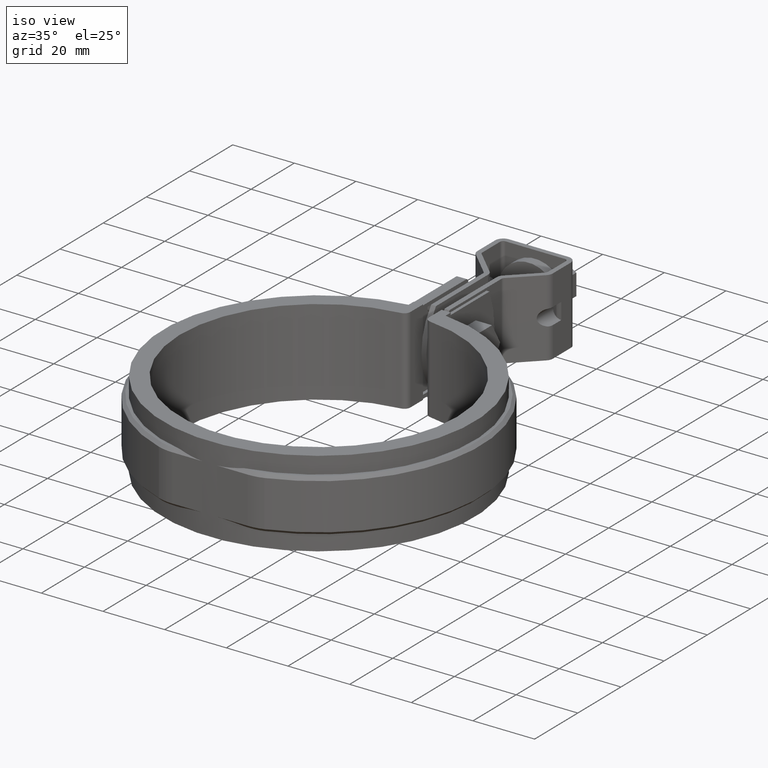
[diagram: clean part render]
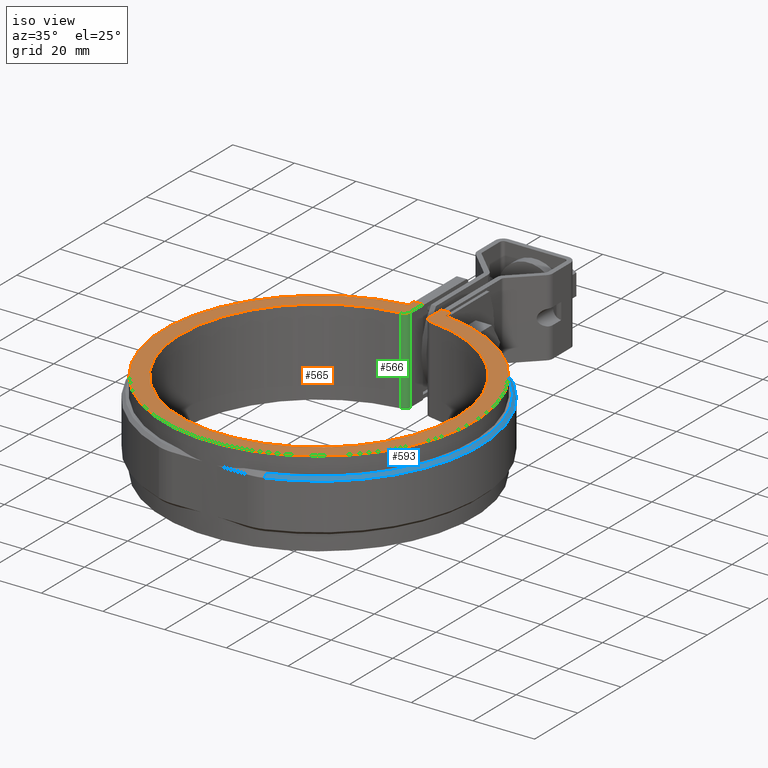
[diagram: same view with three faces highlighted in distinct colors, each labeled with its STEP entity id]
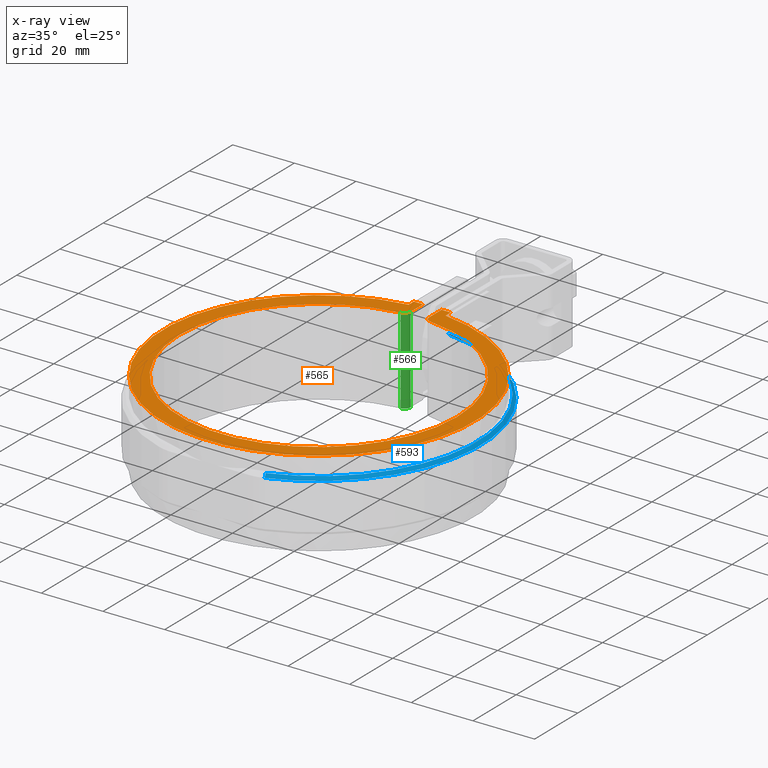
[diagram: x-ray of the same camera — body ghosted, the three highlighted faces saturated]
A machine part, iso view with three faces highlighted in distinct colors.
The next image is the same camera in x-ray (body ghosted, the three faces saturated) — at least one of them is partly hidden behind the body in this view.
Their STEP definitions:

[orange] entity #565 — the highlighted planar face has unit normal (0, 0, 1).
#565 = ADVANCED_FACE( '', ( #1041 ), #1042, .T. );
#1041 = FACE_OUTER_BOUND( '', #2374, .T. );
#1042 = PLANE( '', #2375 );
#2374 = EDGE_LOOP( '', ( #5106, #5107, #5108, #5109, #5110, #5111, #5112, #5113, #5114, #5115 ) );
#2375 = AXIS2_PLACEMENT_3D( '', #5116, #5117, #5118 );
#5106 = ORIENTED_EDGE( '', *, *, #7695, .T. );
#5107 = ORIENTED_EDGE( '', *, *, #7696, .F. );
#5108 = ORIENTED_EDGE( '', *, *, #7673, .F. );
#5109 = ORIENTED_EDGE( '', *, *, #7697, .F. );
#5110 = ORIENTED_EDGE( '', *, *, #7698, .F. );
#5111 = ORIENTED_EDGE( '', *, *, #7699, .F. );
#5112 = ORIENTED_EDGE( '', *, *, #7640, .T. );
#5113 = ORIENTED_EDGE( '', *, *, #7604, .T. );
#5114 = ORIENTED_EDGE( '', *, *, #7652, .T. );
#5115 = ORIENTED_EDGE( '', *, *, #7700, .T. );
#5116 = CARTESIAN_POINT( '', ( -5.24039279849732, 48.0518761955218, 14.0000000000000 ) );
#5117 = DIRECTION( '', ( 0.000000000000000, 0.000000000000000, 1.00000000000000 ) );
#5118 = DIRECTION( '', ( -0.141414143857009, 0.989950523974400, 0.000000000000000 ) );
#7604 = EDGE_CURVE( '', #8821, #8819, #8822, .T. );
#7640 = EDGE_CURVE( '', #8880, #8821, #8881, .T. );
#7652 = EDGE_CURVE( '', #8819, #8899, #8901, .T. );
#7673 = EDGE_CURVE( '', #8933, #8935, #8936, .T. );
#7695 = EDGE_CURVE( '', #8970, #8971, #8972, .T. );
#7696 = EDGE_CURVE( '', #8935, #8971, #8973, .T. );
#7697 = EDGE_CURVE( '', #8974, #8933, #8975, .T. );
#7698 = EDGE_CURVE( '', #8976, #8974, #8977, .T. );
#7699 = EDGE_CURVE( '', #8880, #8976, #8978, .T. );
#7700 = EDGE_CURVE( '', #8899, #8970, #8979, .T. );
#8819 = VERTEX_POINT( '', #12534 );
#8821 = VERTEX_POINT( '', #12537 );
#8822 = CIRCLE( '', #12538, 2.00000000000000 );
#8880 = VERTEX_POINT( '', #12696 );
#8881 = LINE( '', #12697, #12698 );
#8899 = VERTEX_POINT( '', #12723 );
#8901 = CIRCLE( '', #12726, 45.0000000000000 );
#8933 = VERTEX_POINT( '', #12779 );
#8935 = VERTEX_POINT( '', #12782 );
#8936 = LINE( '', #12783, #12784 );
#8970 = VERTEX_POINT( '', #12833 );
#8971 = VERTEX_POINT( '', #12834 );
#8972 = LINE( '', #12835, #12836 );
#8973 = LINE( '', #12837, #12838 );
#8974 = VERTEX_POINT( '', #12839 );
#8975 = CIRCLE( '', #12840, 50.5000000000000 );
#8976 = VERTEX_POINT( '', #12841 );
#8977 = LINE( '', #12842, #12843 );
#8978 = LINE( '', #12844, #12845 );
#8979 = CIRCLE( '', #12846, 2.00000000000000 );
#12534 = CARTESIAN_POINT( '', ( 4.78723404255318, 44.7446353233750, 14.0000000000000 ) );
#12537 = CARTESIAN_POINT( '', ( 3.00000000000000, 46.7332857821917, 14.0000000000000 ) );
#12538 = AXIS2_PLACEMENT_3D( '', #14724, #14725, #14726 );
#12696 = CARTESIAN_POINT( '', ( 2.99999999999996, 52.5500000000000, 14.0000000000000 ) );
#12697 = CARTESIAN_POINT( '', ( 3.00000000000000, 52.5500000000000, 14.0000000000000 ) );
#12698 = VECTOR( '', #14752, 1000.00000000000 );
#12723 = CARTESIAN_POINT( '', ( -4.78723404255264, 44.7446353233751, 14.0000000000000 ) );
#12726 = AXIS2_PLACEMENT_3D( '', #14770, #14771, #14772 );
#12779 = CARTESIAN_POINT( '', ( -5.99999999999999, 50.1422975141746, 14.0000000000000 ) );
#12782 = CARTESIAN_POINT( '', ( -6.00000000000000, 52.5500000000000, 14.0000000000000 ) );
#12783 = CARTESIAN_POINT( '', ( -6.00000000000000, 50.1422975141746, 14.0000000000000 ) );
#12784 = VECTOR( '', #14795, 1000.00000000000 );
#12833 = CARTESIAN_POINT( '', ( -2.99999999999934, 46.7332857821918, 14.0000000000000 ) );
#12834 = CARTESIAN_POINT( '', ( -2.99999999999934, 52.5500000000000, 14.0000000000000 ) );
#12835 = CARTESIAN_POINT( '', ( -2.99999999999934, 46.7332857821917, 14.0000000000000 ) );
#12836 = VECTOR( '', #14829, 1000.00000000000 );
#12837 = CARTESIAN_POINT( '', ( -5.99999999999999, 52.5500000000000, 14.0000000000000 ) );
#12838 = VECTOR( '', #14830, 1000.00000000000 );
#12839 = CARTESIAN_POINT( '', ( 6.00000000000000, 50.1422975141746, 14.0000000000000 ) );
#12840 = AXIS2_PLACEMENT_3D( '', #14831, #14832, #14833 );
#12841 = CARTESIAN_POINT( '', ( 5.99999999999998, 52.5500000000000, 14.0000000000000 ) );
#12842 = CARTESIAN_POINT( '', ( 6.00000000000000, 52.5500000000000, 14.0000000000000 ) );
#12843 = VECTOR( '', #14834, 1000.00000000000 );
#12844 = CARTESIAN_POINT( '', ( 4.99999999999999, 52.5500000000000, 14.0000000000000 ) );
#12845 = VECTOR( '', #14835, 1000.00000000000 );
#12846 = AXIS2_PLACEMENT_3D( '', #14836, #14837, #14838 );
#14724 = CARTESIAN_POINT( '', ( 5.00000000000000, 46.7332857821917, 14.0000000000000 ) );
#14725 = DIRECTION( '', ( 0.000000000000000, 0.000000000000000, 1.00000000000000 ) );
#14726 = DIRECTION( '', ( -1.00000000000000, -2.48412401759879E-015, 0.000000000000000 ) );
#14752 = DIRECTION( '', ( 2.77555756156289E-017, -1.00000000000000, 0.000000000000000 ) );
#14770 = CARTESIAN_POINT( '', ( 3.46944695195361E-015, 2.77555756156289E-014, 14.0000000000000 ) );
#14771 = DIRECTION( '', ( 0.000000000000000, 0.000000000000000, -1.00000000000000 ) );
#14772 = DIRECTION( '', ( 1.00000000000000, -2.77555756156289E-017, 0.000000000000000 ) );
#14795 = DIRECTION( '', ( 5.55111512312578E-017, 1.00000000000000, 0.000000000000000 ) );
#14829 = DIRECTION( '', ( -2.77555756156289E-017, 1.00000000000000, 0.000000000000000 ) );
#14830 = DIRECTION( '', ( 1.00000000000000, 0.000000000000000, 0.000000000000000 ) );
#14831 = CARTESIAN_POINT( '', ( 0.000000000000000, 6.93889390390723E-015, 14.0000000000000 ) );
#14832 = DIRECTION( '', ( 0.000000000000000, 0.000000000000000, -1.00000000000000 ) );
#14833 = DIRECTION( '', ( 1.00000000000000, -2.77555756156289E-017, 0.000000000000000 ) );
#14834 = DIRECTION( '', ( -5.55111512312578E-017, -1.00000000000000, 0.000000000000000 ) );
#14835 = DIRECTION( '', ( 1.00000000000000, 0.000000000000000, 0.000000000000000 ) );
#14836 = CARTESIAN_POINT( '', ( -4.99999999999934, 46.7332857821918, 14.0000000000000 ) );
#14837 = DIRECTION( '', ( 0.000000000000000, 0.000000000000000, 1.00000000000000 ) );
#14838 = DIRECTION( '', ( 1.00000000000000, 2.53963516883005E-015, 0.000000000000000 ) );

[blue] entity #593 — the highlighted conical surface has half-angle 45 deg.
#593 = ADVANCED_FACE( '', ( #1099 ), #1100, .T. );
#1099 = FACE_OUTER_BOUND( '', #2436, .T. );
#1100 = CONICAL_SURFACE( '', #2437, 52.5000000000000, 0.785398163397447 );
#2436 = EDGE_LOOP( '', ( #5356, #5357, #5358, #5359 ) );
#2437 = AXIS2_PLACEMENT_3D( '', #5360, #5361, #5362 );
#5356 = ORIENTED_EDGE( '', *, *, #7718, .F. );
#5357 = ORIENTED_EDGE( '', *, *, #7753, .F. );
#5358 = ORIENTED_EDGE( '', *, *, #7750, .F. );
#5359 = ORIENTED_EDGE( '', *, *, #7754, .F. );
#5360 = CARTESIAN_POINT( '', ( -8.67361737988404E-016, -6.93889390390723E-015, 7.50000000000000 ) );
#5361 = DIRECTION( '', ( 0.000000000000000, 0.000000000000000, -1.00000000000000 ) );
#5362 = DIRECTION( '', ( -1.00000000000000, 0.000000000000000, 0.000000000000000 ) );
#7718 = EDGE_CURVE( '', #9003, #9005, #9006, .T. );
#7750 = EDGE_CURVE( '', #9049, #9050, #9051, .T. );
#7753 = EDGE_CURVE( '', #9050, #9003, #9054, .T. );
#7754 = EDGE_CURVE( '', #9005, #9049, #9055, .F. );
#9003 = VERTEX_POINT( '', #12880 );
#9005 = VERTEX_POINT( '', #12883 );
#9006 = B_SPLINE_CURVE_WITH_KNOTS( '', 3, ( #12884, #12885, #12886, #12887 ), .UNSPECIFIED., .F., .F., ( 4, 4 ), ( 0.000000000000000, 0.00141897658011585 ), .UNSPECIFIED. );
#9049 = VERTEX_POINT( '', #12955 );
#9050 = VERTEX_POINT( '', #12956 );
#9051 = LINE( '', #12957, #12958 );
#9054 = CIRCLE( '', #12961, 51.5000000000000 );
#9055 = CIRCLE( '', #12962, 52.5000000000000 );
#12880 = CARTESIAN_POINT( '', ( 6.00000000000000, 51.1492912951881, 8.50000000000000 ) );
#12883 = CARTESIAN_POINT( '', ( 6.00000000000000, 52.1560159521411, 7.50000000000000 ) );
#12884 = CARTESIAN_POINT( '', ( 6.00000000000000, 51.1492912951881, 8.50000000000000 ) );
#12885 = CARTESIAN_POINT( '', ( 6.00000000000000, 51.4848880168664, 8.16668865097401 ) );
#12886 = CARTESIAN_POINT( '', ( 6.00000000000000, 51.8204624852313, 7.83335489472275 ) );
#12887 = CARTESIAN_POINT( '', ( 6.00000000000000, 52.1560159521411, 7.50000000000000 ) );
#12955 = CARTESIAN_POINT( '', ( 17.1610764231152, -49.6160000000000, 7.50000000000000 ) );
#12956 = CARTESIAN_POINT( '', ( 16.8341987769606, -48.6709333333333, 8.50000000000000 ) );
#12957 = CARTESIAN_POINT( '', ( 17.1610764231152, -49.6160000000000, 7.50000000000000 ) );
#12958 = VECTOR( '', #14914, 1000.00000000000 );
#12961 = AXIS2_PLACEMENT_3D( '', #14921, #14922, #14923 );
#12962 = AXIS2_PLACEMENT_3D( '', #14924, #14925, #14926 );
#14914 = DIRECTION( '', ( -0.231137400214197, 0.668263048673365, 0.707106781186549 ) );
#14921 = CARTESIAN_POINT( '', ( -8.67361737988404E-016, -6.93889390390723E-015, 8.50000000000000 ) );
#14922 = DIRECTION( '', ( 0.000000000000000, 0.000000000000000, 1.00000000000000 ) );
#14923 = DIRECTION( '', ( 1.00000000000000, 0.000000000000000, 0.000000000000000 ) );
#14924 = CARTESIAN_POINT( '', ( -8.67361737988404E-016, -6.93889390390723E-015, 7.50000000000000 ) );
#14925 = DIRECTION( '', ( 0.000000000000000, 0.000000000000000, 1.00000000000000 ) );
#14926 = DIRECTION( '', ( 1.00000000000000, 0.000000000000000, 0.000000000000000 ) );

[green] entity #566 — the highlighted cylindrical surface (edge-blend (fillet) strip) has radius 2 mm, axis along (0, 0, 1).
#566 = ADVANCED_FACE( '', ( #1043 ), #1044, .T. );
#1043 = FACE_OUTER_BOUND( '', #2376, .T. );
#1044 = CYLINDRICAL_SURFACE( '', #2377, 2.00000000000000 );
#2376 = EDGE_LOOP( '', ( #5119, #5120, #5121, #5122 ) );
#2377 = AXIS2_PLACEMENT_3D( '', #5123, #5124, #5125 );
#5119 = ORIENTED_EDGE( '', *, *, #7659, .T. );
#5120 = ORIENTED_EDGE( '', *, *, #7701, .F. );
#5121 = ORIENTED_EDGE( '', *, *, #7700, .F. );
#5122 = ORIENTED_EDGE( '', *, *, #7651, .T. );
#5123 = CARTESIAN_POINT( '', ( -4.99999999999934, 46.7332857821918, 14.0000000000000 ) );
#5124 = DIRECTION( '', ( 0.000000000000000, 0.000000000000000, 1.00000000000000 ) );
#5125 = DIRECTION( '', ( 0.106382978723404, 0.994325229408334, 0.000000000000000 ) );
#7651 = EDGE_CURVE( '', #8899, #8897, #8900, .T. );
#7659 = EDGE_CURVE( '', #8897, #8912, #8914, .T. );
#7700 = EDGE_CURVE( '', #8899, #8970, #8979, .T. );
#7701 = EDGE_CURVE( '', #8970, #8912, #8980, .T. );
#8897 = VERTEX_POINT( '', #12721 );
#8899 = VERTEX_POINT( '', #12723 );
#8900 = LINE( '', #12724, #12725 );
#8912 = VERTEX_POINT( '', #12741 );
#8914 = CIRCLE( '', #12744, 2.00000000000000 );
#8970 = VERTEX_POINT( '', #12833 );
#8979 = CIRCLE( '', #12846, 2.00000000000000 );
#8980 = LINE( '', #12847, #12848 );
#12721 = CARTESIAN_POINT( '', ( -4.78723404255264, 44.7446353233751, -14.0000000000000 ) );
#12723 = CARTESIAN_POINT( '', ( -4.78723404255264, 44.7446353233751, 14.0000000000000 ) );
#12724 = CARTESIAN_POINT( '', ( -4.78723404255264, 44.7446353233751, 14.0000000000000 ) );
#12725 = VECTOR( '', #14769, 1000.00000000000 );
#12741 = CARTESIAN_POINT( '', ( -2.99999999999934, 46.7332857821918, -14.0000000000000 ) );
#12744 = AXIS2_PLACEMENT_3D( '', #14781, #14782, #14783 );
#12833 = CARTESIAN_POINT( '', ( -2.99999999999934, 46.7332857821918, 14.0000000000000 ) );
#12846 = AXIS2_PLACEMENT_3D( '', #14836, #14837, #14838 );
#12847 = CARTESIAN_POINT( '', ( -2.99999999999934, 46.7332857821918, 14.0000000000000 ) );
#12848 = VECTOR( '', #14839, 1000.00000000000 );
#14769 = DIRECTION( '', ( 0.000000000000000, 0.000000000000000, -1.00000000000000 ) );
#14781 = CARTESIAN_POINT( '', ( -4.99999999999934, 46.7332857821918, -14.0000000000000 ) );
#14782 = DIRECTION( '', ( 0.000000000000000, 0.000000000000000, 1.00000000000000 ) );
#14783 = DIRECTION( '', ( 1.00000000000000, 2.53963516883005E-015, 0.000000000000000 ) );
#14836 = CARTESIAN_POINT( '', ( -4.99999999999934, 46.7332857821918, 14.0000000000000 ) );
#14837 = DIRECTION( '', ( 0.000000000000000, 0.000000000000000, 1.00000000000000 ) );
#14838 = DIRECTION( '', ( 1.00000000000000, 2.53963516883005E-015, 0.000000000000000 ) );
#14839 = DIRECTION( '', ( 0.000000000000000, 0.000000000000000, -1.00000000000000 ) );